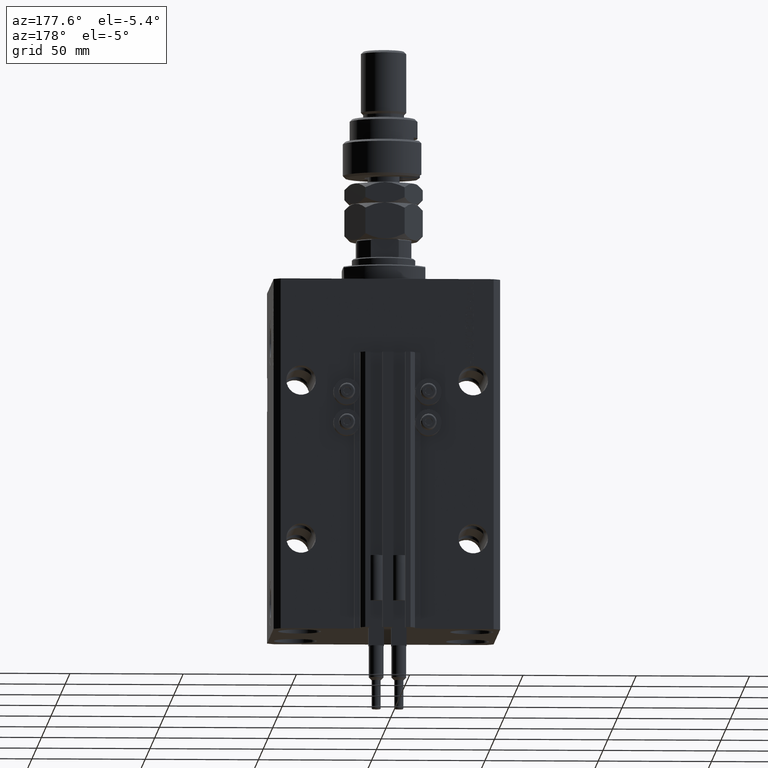
[diagram: clean part render]
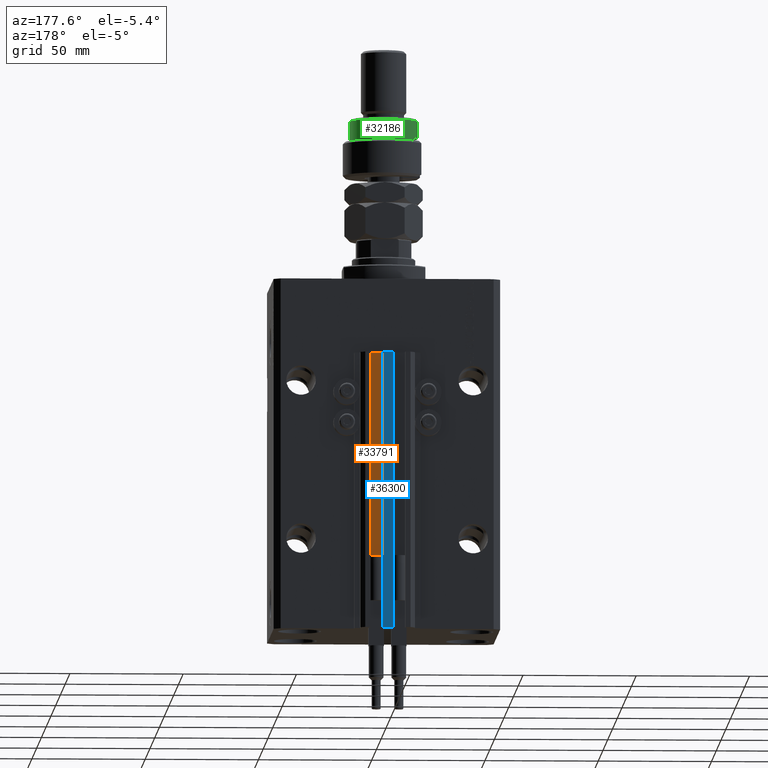
[diagram: same view with three faces highlighted in distinct colors, each labeled with its STEP entity id]
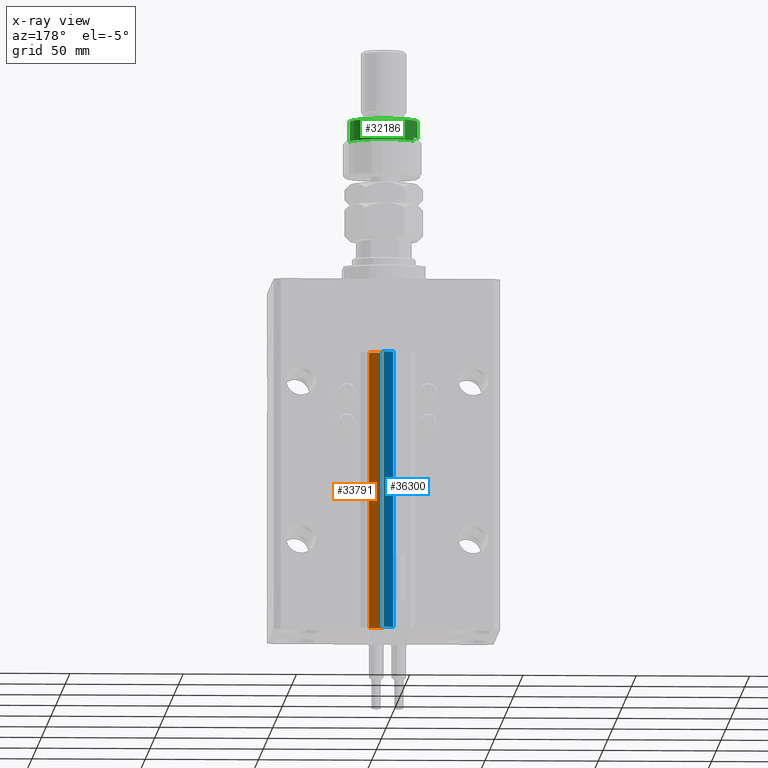
[diagram: x-ray of the same camera — body ghosted, the three highlighted faces saturated]
A machine part, auxiliary view with three faces highlighted in distinct colors.
The next image is the same camera in x-ray (body ghosted, the three faces saturated) — at least one of them is partly hidden behind the body in this view.
Their STEP definitions:

[orange] entity #33791 — the highlighted planar face has unit normal (-0, 1, 0).
#2163 = CARTESIAN_POINT ( 'NONE',  ( 8.199999999999999289, 39.50000000000000711, -33.00000000000000000 ) ) ;
#2720 = FACE_OUTER_BOUND ( 'NONE', #32256, .T. ) ;
#2792 = LINE ( 'NONE', #30311, #23954 ) ;
#3381 = EDGE_CURVE ( 'NONE', #17101, #28798, #2792, .T. ) ;
#4490 = CARTESIAN_POINT ( 'NONE',  ( 1.800000000000000933, 39.50000000000000000, -33.00000000000000000 ) ) ;
#4874 = EDGE_CURVE ( 'NONE', #13463, #24588, #37547, .T. ) ;
#5356 = ORIENTED_EDGE ( 'NONE', *, *, #40406, .F. ) ;
#10190 = ORIENTED_EDGE ( 'NONE', *, *, #4874, .F. ) ;
#11635 = ORIENTED_EDGE ( 'NONE', *, *, #49043, .T. ) ;
#13463 = VERTEX_POINT ( 'NONE', #20041 ) ;
#14654 = DIRECTION ( 'NONE',  ( 0.000000000000000000, 0.000000000000000000, 1.000000000000000000 ) ) ;
#14669 = LINE ( 'NONE', #30651, #32453 ) ;
#17101 = VERTEX_POINT ( 'NONE', #51823 ) ;
#18443 = PLANE ( 'NONE',  #46286 ) ;
#18699 = DIRECTION ( 'NONE',  ( -1.000000000000000000, -1.084202172485505026E-15, 0.000000000000000000 ) ) ;
#19108 = CARTESIAN_POINT ( 'NONE',  ( 1.800000000000000933, 39.50000000000000000, -155.0000000000000000 ) ) ;
#20041 = CARTESIAN_POINT ( 'NONE',  ( 8.199999999999999289, 39.50000000000000711, -33.00000000000000000 ) ) ;
#20229 = VECTOR ( 'NONE', #14654, 1000.000000000000000 ) ;
#21772 = DIRECTION ( 'NONE',  ( 0.000000000000000000, 0.000000000000000000, 1.000000000000000000 ) ) ;
#21890 = CARTESIAN_POINT ( 'NONE',  ( 1.800000000000000933, 39.50000000000000000, -155.0000000000000000 ) ) ;
#23954 = VECTOR ( 'NONE', #46327, 1000.000000000000000 ) ;
#24588 = VERTEX_POINT ( 'NONE', #4490 ) ;
#26548 = DIRECTION ( 'NONE',  ( -1.084202172485505026E-15, 1.000000000000000000, 0.000000000000000000 ) ) ;
#27183 = ORIENTED_EDGE ( 'NONE', *, *, #3381, .T. ) ;
#28798 = VERTEX_POINT ( 'NONE', #21890 ) ;
#30311 = CARTESIAN_POINT ( 'NONE',  ( 8.199999999999999289, 39.50000000000000711, -155.0000000000000000 ) ) ;
#30447 = DIRECTION ( 'NONE',  ( -1.000000000000000000, -1.084202172485504828E-15, 0.000000000000000000 ) ) ;
#30651 = CARTESIAN_POINT ( 'NONE',  ( 8.199999999999999289, 39.50000000000000711, -155.0000000000000000 ) ) ;
#32256 = EDGE_LOOP ( 'NONE', ( #10190, #5356, #27183, #11635 ) ) ;
#32453 = VECTOR ( 'NONE', #21772, 1000.000000000000000 ) ;
#33791 = ADVANCED_FACE ( 'NONE', ( #2720 ), #18443, .T. ) ;
#37547 = LINE ( 'NONE', #2163, #39068 ) ;
#39068 = VECTOR ( 'NONE', #30447, 1000.000000000000000 ) ;
#40406 = EDGE_CURVE ( 'NONE', #17101, #13463, #14669, .T. ) ;
#46286 = AXIS2_PLACEMENT_3D ( 'NONE', #46758, #26548, #18699 ) ;
#46327 = DIRECTION ( 'NONE',  ( -1.000000000000000000, -1.084202172485504828E-15, 0.000000000000000000 ) ) ;
#46758 = CARTESIAN_POINT ( 'NONE',  ( 8.199999999999999289, 39.50000000000000711, -155.0000000000000000 ) ) ;
#49043 = EDGE_CURVE ( 'NONE', #28798, #24588, #50357, .T. ) ;
#50357 = LINE ( 'NONE', #19108, #20229 ) ;
#51823 = CARTESIAN_POINT ( 'NONE',  ( 8.199999999999999289, 39.50000000000000711, -155.0000000000000000 ) ) ;

[blue] entity #36300 — the highlighted planar face has unit normal (0, -1, 0).
#560 = VECTOR ( 'NONE', #32968, 1000.000000000000000 ) ;
#3472 = DIRECTION ( 'NONE',  ( 0.000000000000000000, -0.000000000000000000, -1.000000000000000000 ) ) ;
#4957 = VECTOR ( 'NONE', #39047, 1000.000000000000000 ) ;
#6037 = AXIS2_PLACEMENT_3D ( 'NONE', #43314, #14484, #3472 ) ;
#7123 = CARTESIAN_POINT ( 'NONE',  ( -2.350000000000003642, 45.50000000000000711, -155.0000000000000000 ) ) ;
#7393 = LINE ( 'NONE', #7123, #560 ) ;
#8396 = ORIENTED_EDGE ( 'NONE', *, *, #13689, .F. ) ;
#8464 = VERTEX_POINT ( 'NONE', #10180 ) ;
#9136 = CARTESIAN_POINT ( 'NONE',  ( 2.349999999999999645, 45.50000000000000711, -33.00000000000000000 ) ) ;
#10180 = CARTESIAN_POINT ( 'NONE',  ( -2.350000000000003642, 45.50000000000000711, -155.0000000000000000 ) ) ;
#10788 = VECTOR ( 'NONE', #21843, 1000.000000000000000 ) ;
#11181 = CARTESIAN_POINT ( 'NONE',  ( 2.349999999999999645, 45.50000000000000711, -155.0000000000000000 ) ) ;
#13077 = VECTOR ( 'NONE', #37786, 1000.000000000000000 ) ;
#13689 = EDGE_CURVE ( 'NONE', #28560, #30853, #35375, .T. ) ;
#13738 = VERTEX_POINT ( 'NONE', #23830 ) ;
#14484 = DIRECTION ( 'NONE',  ( 0.000000000000000000, -1.000000000000000000, 0.000000000000000000 ) ) ;
#15460 = CARTESIAN_POINT ( 'NONE',  ( 2.349999999999999645, 45.50000000000000711, -155.0000000000000000 ) ) ;
#16935 = ORIENTED_EDGE ( 'NONE', *, *, #17666, .F. ) ;
#17666 = EDGE_CURVE ( 'NONE', #8464, #28560, #49615, .T. ) ;
#18856 = EDGE_LOOP ( 'NONE', ( #22789, #8396, #16935, #49013 ) ) ;
#18872 = LINE ( 'NONE', #22804, #4957 ) ;
#18922 = FACE_OUTER_BOUND ( 'NONE', #18856, .T. ) ;
#21843 = DIRECTION ( 'NONE',  ( 0.000000000000000000, 0.000000000000000000, 1.000000000000000000 ) ) ;
#22789 = ORIENTED_EDGE ( 'NONE', *, *, #27475, .T. ) ;
#22804 = CARTESIAN_POINT ( 'NONE',  ( -2.350000000000003642, 45.50000000000000711, -33.00000000000000000 ) ) ;
#23830 = CARTESIAN_POINT ( 'NONE',  ( -2.350000000000003642, 45.50000000000000711, -33.00000000000000000 ) ) ;
#27475 = EDGE_CURVE ( 'NONE', #13738, #30853, #18872, .T. ) ;
#28560 = VERTEX_POINT ( 'NONE', #11181 ) ;
#30853 = VERTEX_POINT ( 'NONE', #9136 ) ;
#30973 = PLANE ( 'NONE',  #6037 ) ;
#32968 = DIRECTION ( 'NONE',  ( 0.000000000000000000, 0.000000000000000000, 1.000000000000000000 ) ) ;
#34362 = CARTESIAN_POINT ( 'NONE',  ( -2.350000000000003642, 45.50000000000000711, -155.0000000000000000 ) ) ;
#35375 = LINE ( 'NONE', #15460, #10788 ) ;
#36300 = ADVANCED_FACE ( 'NONE', ( #18922 ), #30973, .F. ) ;
#37786 = DIRECTION ( 'NONE',  ( 1.000000000000000000, 0.000000000000000000, 0.000000000000000000 ) ) ;
#39016 = EDGE_CURVE ( 'NONE', #8464, #13738, #7393, .T. ) ;
#39047 = DIRECTION ( 'NONE',  ( 1.000000000000000000, 0.000000000000000000, 0.000000000000000000 ) ) ;
#43314 = CARTESIAN_POINT ( 'NONE',  ( -2.350000000000003642, 45.50000000000000711, -155.0000000000000000 ) ) ;
#49013 = ORIENTED_EDGE ( 'NONE', *, *, #39016, .T. ) ;
#49615 = LINE ( 'NONE', #34362, #13077 ) ;

[green] entity #32186 — the highlighted cylindrical surface (edge-blend (fillet) strip) has radius 15 mm, axis along (-0, -0, -1).
#573 = LINE ( 'NONE', #24921, #29420 ) ;
#1243 = CARTESIAN_POINT ( 'NONE',  ( -15.00000000000000000, 0.000000000000000000, 24.99999999999997868 ) ) ;
#5502 = CARTESIAN_POINT ( 'NONE',  ( -15.00000000000000000, 0.000000000000000000, 17.50000000000000000 ) ) ;
#6944 = DIRECTION ( 'NONE',  ( -0.000000000000000000, -0.000000000000000000, -1.000000000000000000 ) ) ;
#8943 = VERTEX_POINT ( 'NONE', #37572 ) ;
#9221 = CARTESIAN_POINT ( 'NONE',  ( 0.000000000000000000, 0.000000000000000000, 16.00000000000000000 ) ) ;
#11139 = LINE ( 'NONE', #26852, #26021 ) ;
#12083 = ORIENTED_EDGE ( 'NONE', *, *, #49708, .F. ) ;
#12407 = VERTEX_POINT ( 'NONE', #5502 ) ;
#13220 = DIRECTION ( 'NONE',  ( 0.000000000000000000, 0.000000000000000000, 1.000000000000000000 ) ) ;
#15136 = VERTEX_POINT ( 'NONE', #30044 ) ;
#15210 = AXIS2_PLACEMENT_3D ( 'NONE', #47136, #36342, #23769 ) ;
#15656 = EDGE_CURVE ( 'NONE', #8943, #15136, #48905, .T. ) ;
#15777 = DIRECTION ( 'NONE',  ( -0.000000000000000000, -0.000000000000000000, -1.000000000000000000 ) ) ;
#15846 = CIRCLE ( 'NONE', #37620, 15.00000000000000000 ) ;
#17592 = DIRECTION ( 'NONE',  ( 0.000000000000000000, 0.000000000000000000, 1.000000000000000000 ) ) ;
#19583 = FACE_OUTER_BOUND ( 'NONE', #39405, .T. ) ;
#19978 = DIRECTION ( 'NONE',  ( 0.000000000000000000, 0.000000000000000000, -1.000000000000000000 ) ) ;
#23769 = DIRECTION ( 'NONE',  ( -1.000000000000000000, 0.000000000000000000, 0.000000000000000000 ) ) ;
#24154 = DIRECTION ( 'NONE',  ( -1.000000000000000000, 0.000000000000000000, 0.000000000000000000 ) ) ;
#24921 = CARTESIAN_POINT ( 'NONE',  ( -15.00000000000000000, 0.000000000000000000, 26.00000000000000355 ) ) ;
#25195 = DIRECTION ( 'NONE',  ( 1.000000000000000000, 0.000000000000000000, 0.000000000000000000 ) ) ;
#25532 = VECTOR ( 'NONE', #13220, 1000.000000000000000 ) ;
#26021 = VECTOR ( 'NONE', #6944, 1000.000000000000000 ) ;
#26852 = CARTESIAN_POINT ( 'NONE',  ( 15.00000000000000000, 1.836970198721029589E-15, 26.00000000000000355 ) ) ;
#27383 = EDGE_CURVE ( 'NONE', #38154, #46405, #15846, .T. ) ;
#28555 = AXIS2_PLACEMENT_3D ( 'NONE', #36218, #32546, #24154 ) ;
#29126 = AXIS2_PLACEMENT_3D ( 'NONE', #9221, #17592, #25195 ) ;
#29420 = VECTOR ( 'NONE', #15777, 1000.000000000000000 ) ;
#30044 = CARTESIAN_POINT ( 'NONE',  ( -12.99038105676658006, 7.500000000000000000, 17.50000000000000000 ) ) ;
#31116 = CYLINDRICAL_SURFACE ( 'NONE', #15210, 15.00000000000000000 ) ;
#31523 = EDGE_CURVE ( 'NONE', #12407, #15136, #51206, .T. ) ;
#32186 = ADVANCED_FACE ( 'NONE', ( #19583 ), #31116, .T. ) ;
#32546 = DIRECTION ( 'NONE',  ( 0.000000000000000000, 0.000000000000000000, -1.000000000000000000 ) ) ;
#32930 = ORIENTED_EDGE ( 'NONE', *, *, #50485, .T. ) ;
#33916 = ORIENTED_EDGE ( 'NONE', *, *, #15656, .T. ) ;
#35358 = ORIENTED_EDGE ( 'NONE', *, *, #27383, .T. ) ;
#36218 = CARTESIAN_POINT ( 'NONE',  ( 0.000000000000000000, 0.000000000000000000, 17.50000000000000000 ) ) ;
#36342 = DIRECTION ( 'NONE',  ( -0.000000000000000000, -0.000000000000000000, -1.000000000000000000 ) ) ;
#36642 = CIRCLE ( 'NONE', #29126, 15.00000000000000000 ) ;
#37024 = ORIENTED_EDGE ( 'NONE', *, *, #41274, .T. ) ;
#37572 = CARTESIAN_POINT ( 'NONE',  ( -12.99038105676658006, 7.500000000000000000, 16.00000000000000000 ) ) ;
#37620 = AXIS2_PLACEMENT_3D ( 'NONE', #48054, #19978, #40416 ) ;
#38154 = VERTEX_POINT ( 'NONE', #1243 ) ;
#39405 = EDGE_LOOP ( 'NONE', ( #35358, #32930, #37024, #33916, #40486, #12083 ) ) ;
#40416 = DIRECTION ( 'NONE',  ( 1.000000000000000000, 0.000000000000000000, 0.000000000000000000 ) ) ;
#40486 = ORIENTED_EDGE ( 'NONE', *, *, #31523, .F. ) ;
#41274 = EDGE_CURVE ( 'NONE', #49607, #8943, #36642, .T. ) ;
#46405 = VERTEX_POINT ( 'NONE', #48832 ) ;
#46993 = CARTESIAN_POINT ( 'NONE',  ( 15.00000000000000000, 1.836970198721029589E-15, 16.00000000000000000 ) ) ;
#47136 = CARTESIAN_POINT ( 'NONE',  ( 0.000000000000000000, 0.000000000000000000, 26.00000000000000355 ) ) ;
#48054 = CARTESIAN_POINT ( 'NONE',  ( 0.000000000000000000, 0.000000000000000000, 24.99999999999997868 ) ) ;
#48832 = CARTESIAN_POINT ( 'NONE',  ( 15.00000000000000000, 1.836970198721029589E-15, 24.99999999999997868 ) ) ;
#48905 = LINE ( 'NONE', #49159, #25532 ) ;
#49159 = CARTESIAN_POINT ( 'NONE',  ( -12.99038105676658006, 7.500000000000000000, 26.00000000000000355 ) ) ;
#49607 = VERTEX_POINT ( 'NONE', #46993 ) ;
#49708 = EDGE_CURVE ( 'NONE', #38154, #12407, #573, .T. ) ;
#50485 = EDGE_CURVE ( 'NONE', #46405, #49607, #11139, .T. ) ;
#51206 = CIRCLE ( 'NONE', #28555, 15.00000000000000000 ) ;